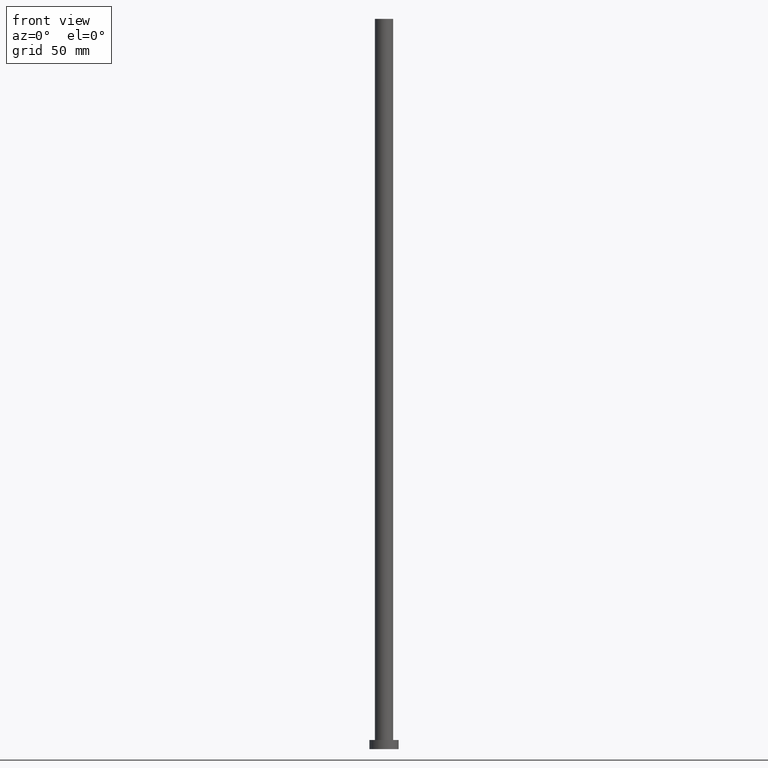
[diagram: clean part render]
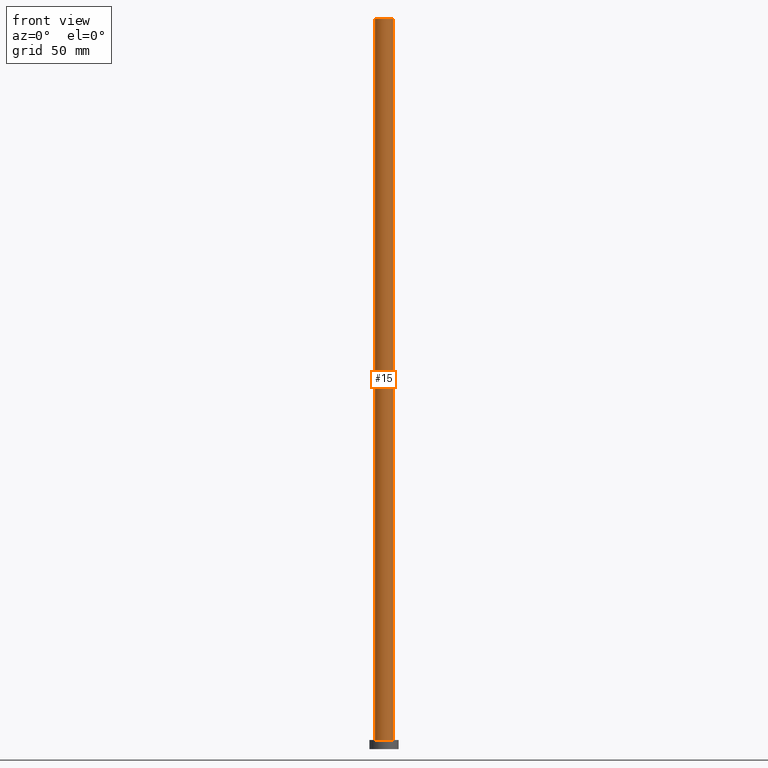
[diagram: same view with one face highlighted and labeled with its STEP entity id]
A machine part, front view. The second image highlights one B-rep face of the part: STEP entity #15.
In plain terms, the highlighted cylindrical surface (edge-blend (fillet) strip) has radius 5 mm, axis along (-0, -0, -1).
Its self-contained STEP definition (entity closure, byte-faithful):
#9 = ORIENTED_EDGE ( 'NONE', *, *, #241, .F. ) ;
#15 = ADVANCED_FACE ( 'NONE', ( #154 ), #98, .T. ) ;
#18 = DIRECTION ( 'NONE',  ( 1.000000000000000000, 0.000000000000000000, 0.000000000000000000 ) ) ;
#26 = DIRECTION ( 'NONE',  ( -0.000000000000000000, -0.000000000000000000, -1.000000000000000000 ) ) ;
#53 = EDGE_CURVE ( 'NONE', #130, #90, #106, .T. ) ;
#55 = ORIENTED_EDGE ( 'NONE', *, *, #84, .F. ) ;
#60 = CARTESIAN_POINT ( 'NONE',  ( 0.000000000000000000, 0.000000000000000000, 5.000000000000000000 ) ) ;
#64 = CARTESIAN_POINT ( 'NONE',  ( 5.000000000000000000, 6.123233995736765296E-16, 400.0000000000000000 ) ) ;
#70 = EDGE_CURVE ( 'NONE', #147, #130, #80, .T. ) ;
#77 = DIRECTION ( 'NONE',  ( -0.000000000000000000, -0.000000000000000000, -1.000000000000000000 ) ) ;
#80 = LINE ( 'NONE', #173, #221 ) ;
#84 = EDGE_CURVE ( 'NONE', #147, #245, #254, .T. ) ;
#90 = VERTEX_POINT ( 'NONE', #121 ) ;
#98 = CYLINDRICAL_SURFACE ( 'NONE', #175, 5.000000000000000000 ) ;
#106 = CIRCLE ( 'NONE', #188, 5.000000000000000000 ) ;
#115 = AXIS2_PLACEMENT_3D ( 'NONE', #152, #213, #18 ) ;
#121 = CARTESIAN_POINT ( 'NONE',  ( 5.000000000000000000, 6.123233995736765296E-16, 5.000000000000000000 ) ) ;
#124 = LINE ( 'NONE', #198, #234 ) ;
#130 = VERTEX_POINT ( 'NONE', #172 ) ;
#136 = DIRECTION ( 'NONE',  ( -0.000000000000000000, -0.000000000000000000, -1.000000000000000000 ) ) ;
#139 = DIRECTION ( 'NONE',  ( 1.000000000000000000, 0.000000000000000000, 0.000000000000000000 ) ) ;
#147 = VERTEX_POINT ( 'NONE', #178 ) ;
#152 = CARTESIAN_POINT ( 'NONE',  ( 0.000000000000000000, 0.000000000000000000, 400.0000000000000000 ) ) ;
#154 = FACE_OUTER_BOUND ( 'NONE', #169, .T. ) ;
#169 = EDGE_LOOP ( 'NONE', ( #9, #55, #246, #209 ) ) ;
#172 = CARTESIAN_POINT ( 'NONE',  ( -5.000000000000000000, 0.000000000000000000, 5.000000000000000000 ) ) ;
#173 = CARTESIAN_POINT ( 'NONE',  ( -5.000000000000000000, 0.000000000000000000, 400.0000000000000000 ) ) ;
#175 = AXIS2_PLACEMENT_3D ( 'NONE', #211, #136, #251 ) ;
#178 = CARTESIAN_POINT ( 'NONE',  ( -5.000000000000000000, 0.000000000000000000, 400.0000000000000000 ) ) ;
#188 = AXIS2_PLACEMENT_3D ( 'NONE', #60, #210, #139 ) ;
#198 = CARTESIAN_POINT ( 'NONE',  ( 5.000000000000000000, 6.123233995736765296E-16, 400.0000000000000000 ) ) ;
#209 = ORIENTED_EDGE ( 'NONE', *, *, #53, .T. ) ;
#210 = DIRECTION ( 'NONE',  ( 0.000000000000000000, 0.000000000000000000, 1.000000000000000000 ) ) ;
#211 = CARTESIAN_POINT ( 'NONE',  ( 0.000000000000000000, 0.000000000000000000, 400.0000000000000000 ) ) ;
#213 = DIRECTION ( 'NONE',  ( 0.000000000000000000, 0.000000000000000000, 1.000000000000000000 ) ) ;
#221 = VECTOR ( 'NONE', #77, 1000.000000000000000 ) ;
#234 = VECTOR ( 'NONE', #26, 1000.000000000000000 ) ;
#241 = EDGE_CURVE ( 'NONE', #245, #90, #124, .T. ) ;
#245 = VERTEX_POINT ( 'NONE', #64 ) ;
#246 = ORIENTED_EDGE ( 'NONE', *, *, #70, .T. ) ;
#251 = DIRECTION ( 'NONE',  ( -1.000000000000000000, 0.000000000000000000, 0.000000000000000000 ) ) ;
#254 = CIRCLE ( 'NONE', #115, 5.000000000000000000 ) ;